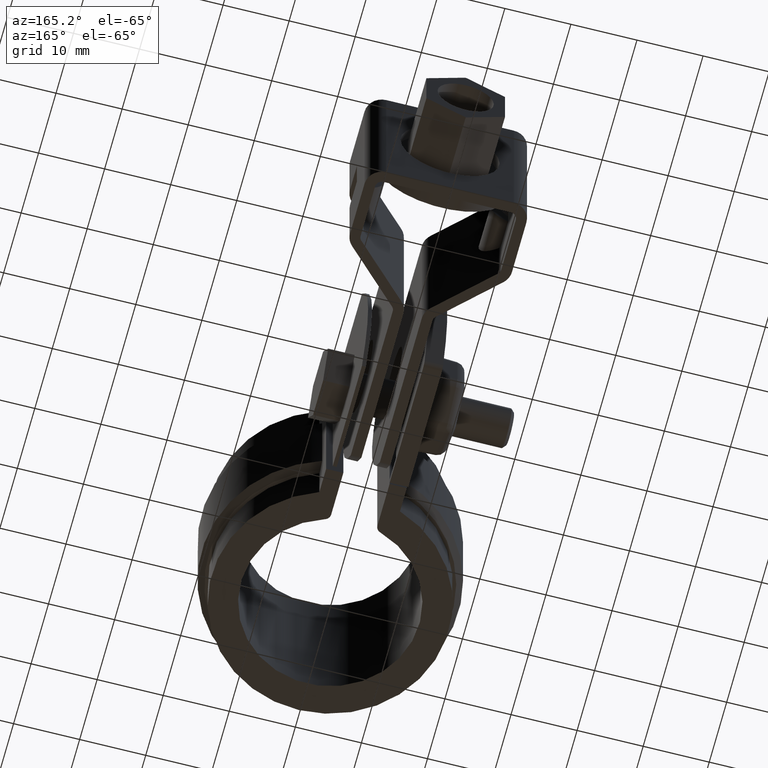
[diagram: clean part render]
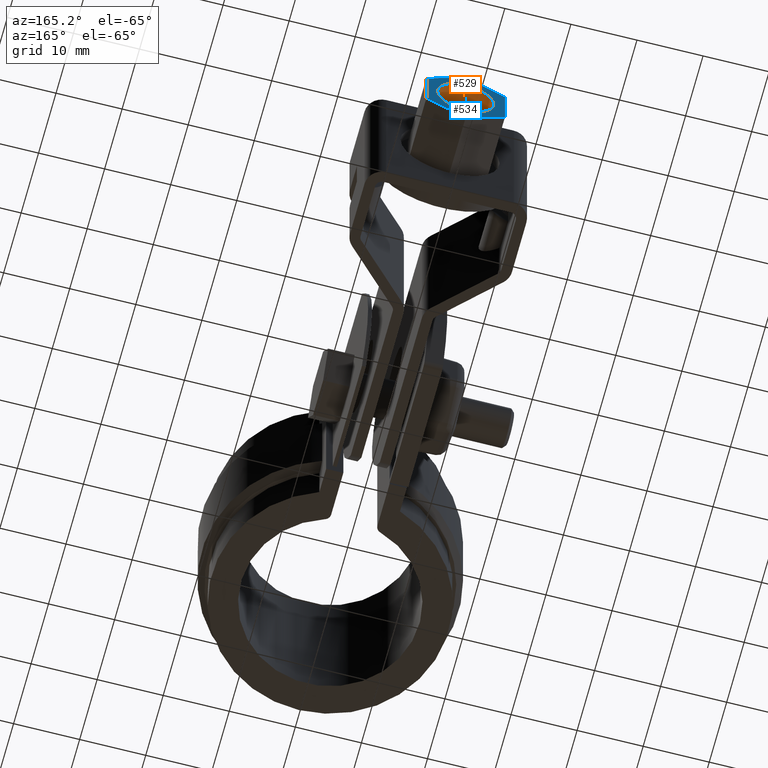
[diagram: same view with the hole feature highlighted: cylindrical wall and planar end face, labeled with their STEP entity ids]
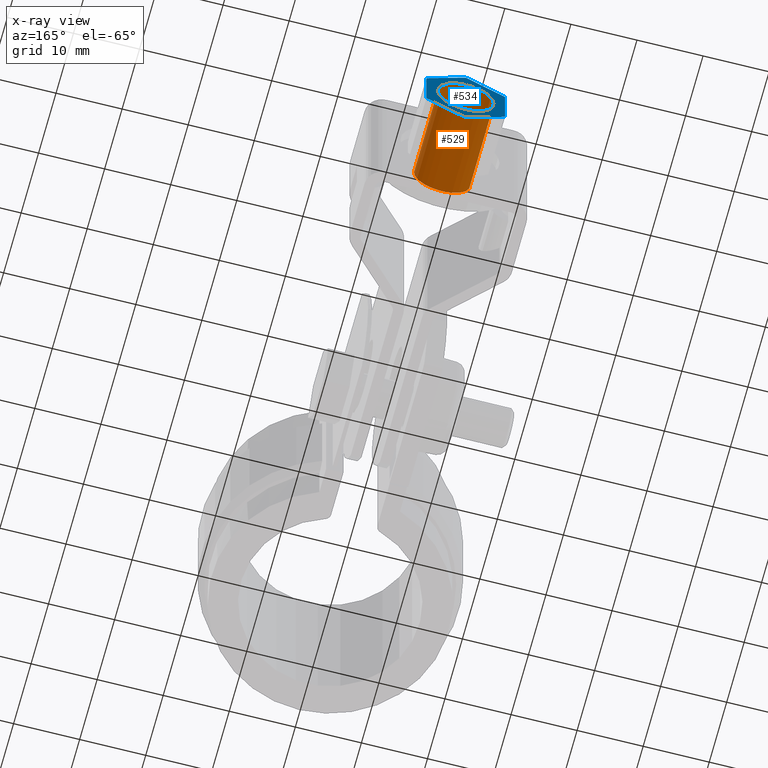
[diagram: x-ray of the same camera — body ghosted, the hole faces saturated]
A machine part, auxiliary view. The highlighted faces form one hole feature of diameter 8.5 mm: the cylindrical wall (entity #529, orange) and its adjacent planar end face (entity #534, blue) — they share a circular edge in the B-rep.
The next image is the same camera in x-ray (body ghosted, the hole faces saturated) — the bore reads through the body.
Wall:
#529 = ADVANCED_FACE( '', ( #1040, #1041 ), #1042, .F. );
#1040 = FACE_OUTER_BOUND( '', #2121, .T. );
#1041 = FACE_OUTER_BOUND( '', #2122, .T. );
#1042 = CYLINDRICAL_SURFACE( '', #2123, 4.25000000000000 );
#2121 = EDGE_LOOP( '', ( #4666 ) );
#2122 = EDGE_LOOP( '', ( #4667 ) );
#2123 = AXIS2_PLACEMENT_3D( '', #4668, #4669, #4670 );
#4666 = ORIENTED_EDGE( '', *, *, #6462, .F. );
#4667 = ORIENTED_EDGE( '', *, *, #6460, .F. );
#4668 = CARTESIAN_POINT( '', ( 1.08331310953628E-007, 59.7492907745435, -12.4999999827188 ) );
#4669 = DIRECTION( '', ( -7.94778667583653E-010, -1.00000000000000, -1.31468003180933E-010 ) );
#4670 = DIRECTION( '', ( 1.00000000000000, -7.94778667588677E-010, 3.82136079749811E-011 ) );
#6460 = EDGE_CURVE( '', #7698, #7698, #7699, .T. );
#6462 = EDGE_CURVE( '', #7702, #7702, #7703, .T. );
#7698 = VERTEX_POINT( '', #10871 );
#7699 = CIRCLE( '', #10872, 4.25000000000000 );
#7702 = VERTEX_POINT( '', #10875 );
#7703 = CIRCLE( '', #10876, 4.25000000000000 );
#10871 = CARTESIAN_POINT( '', ( 4.25000011170912, 63.9992907711978, -12.4999999819976 ) );
#10872 = AXIS2_PLACEMENT_3D( '', #12591, #12592, #12593 );
#10875 = CARTESIAN_POINT( '', ( 4.25000012251811, 77.5992907711978, -12.4999999802097 ) );
#10876 = AXIS2_PLACEMENT_3D( '', #12597, #12598, #12599 );
#12591 = CARTESIAN_POINT( '', ( 1.11709120290884E-007, 63.9992907745756, -12.4999999821600 ) );
#12592 = DIRECTION( '', ( 7.94778667583653E-010, 1.00000000000000, 1.31468003180933E-010 ) );
#12593 = DIRECTION( '', ( 1.00000000000000, -7.94778667588677E-010, 3.82132749080738E-011 ) );
#12597 = CARTESIAN_POINT( '', ( 1.22518110170022E-007, 77.5992907745756, -12.4999999803721 ) );
#12598 = DIRECTION( '', ( -7.94778667583653E-010, -1.00000000000000, -1.31468003180933E-010 ) );
#12599 = DIRECTION( '', ( 1.00000000000000, -7.94778667588677E-010, 3.82136079749811E-011 ) );
End face:
#534 = ADVANCED_FACE( '', ( #1052, #1053 ), #1054, .T. );
#1052 = FACE_BOUND( '', #2133, .T. );
#1053 = FACE_OUTER_BOUND( '', #2134, .T. );
#1054 = PLANE( '', #2135 );
#2133 = EDGE_LOOP( '', ( #4697 ) );
#2134 = EDGE_LOOP( '', ( #4698, #4699, #4700, #4701, #4702, #4703 ) );
#2135 = AXIS2_PLACEMENT_3D( '', #4704, #4705, #4706 );
#4697 = ORIENTED_EDGE( '', *, *, #6462, .T. );
#4698 = ORIENTED_EDGE( '', *, *, #6448, .T. );
#4699 = ORIENTED_EDGE( '', *, *, #6457, .T. );
#4700 = ORIENTED_EDGE( '', *, *, #6459, .T. );
#4701 = ORIENTED_EDGE( '', *, *, #6464, .T. );
#4702 = ORIENTED_EDGE( '', *, *, #6466, .T. );
#4703 = ORIENTED_EDGE( '', *, *, #6467, .T. );
#4704 = CARTESIAN_POINT( '', ( 5.95000012264939, 77.5992907702983, -15.9352340818230 ) );
#4705 = DIRECTION( '', ( 7.94778667583653E-010, 1.00000000000000, 1.31468003180933E-010 ) );
#4706 = DIRECTION( '', ( 0.500000000033094, -2.83534703281139E-010, -0.866025403765332 ) );
#6448 = EDGE_CURVE( '', #7678, #7676, #7679, .T. );
#6457 = EDGE_CURVE( '', #7676, #7692, #7694, .T. );
#6459 = EDGE_CURVE( '', #7692, #7695, #7697, .T. );
#6462 = EDGE_CURVE( '', #7702, #7702, #7703, .T. );
#6464 = EDGE_CURVE( '', #7695, #7704, #7706, .T. );
#6466 = EDGE_CURVE( '', #7704, #7707, #7709, .T. );
#6467 = EDGE_CURVE( '', #7707, #7678, #7710, .T. );
#7676 = VERTEX_POINT( '', #10837 );
#7678 = VERTEX_POINT( '', #10840 );
#7679 = LINE( '', #10841, #10842 );
#7692 = VERTEX_POINT( '', #10861 );
#7694 = LINE( '', #10864, #10865 );
#7695 = VERTEX_POINT( '', #10866 );
#7697 = LINE( '', #10869, #10870 );
#7702 = VERTEX_POINT( '', #10875 );
#7703 = CIRCLE( '', #10876, 4.25000000000000 );
#7704 = VERTEX_POINT( '', #10877 );
#7706 = LINE( '', #10880, #10881 );
#7707 = VERTEX_POINT( '', #10882 );
#7709 = LINE( '', #10885, #10886 );
#7710 = LINE( '', #10887, #10888 );
#10837 = CARTESIAN_POINT( '', ( 5.95000012264939, 77.5992907702983, -15.9352340818230 ) );
#10840 = CARTESIAN_POINT( '', ( 5.95000012238684, 77.5992907693951, -9.06476587846640 ) );
#10841 = CARTESIAN_POINT( '', ( 5.95000012238684, 77.5992907693951, -9.06476587846640 ) );
#10842 = VECTOR( '', #12577, 1000.00000000000 );
#10861 = CARTESIAN_POINT( '', ( 1.22780656296708E-007, 77.5992907754788, -19.3704681837286 ) );
#10864 = CARTESIAN_POINT( '', ( 5.95000012264939, 77.5992907702983, -15.9352340818230 ) );
#10865 = VECTOR( '', #12588, 1000.00000000000 );
#10866 = CARTESIAN_POINT( '', ( -5.94999987735061, 77.5992907797562, -15.9352340822777 ) );
#10869 = CARTESIAN_POINT( '', ( 1.22780658031432E-007, 77.5992907754788, -19.3704681837286 ) );
#10870 = VECTOR( '', #12590, 1000.00000000000 );
#10875 = CARTESIAN_POINT( '', ( 4.25000012251811, 77.5992907711978, -12.4999999802097 ) );
#10876 = AXIS2_PLACEMENT_3D( '', #12597, #12598, #12599 );
#10877 = CARTESIAN_POINT( '', ( -5.94999987761316, 77.5992907788529, -9.06476587892116 ) );
#10880 = CARTESIAN_POINT( '', ( -5.94999987735062, 77.5992907797562, -15.9352340822777 ) );
#10881 = VECTOR( '', #12601, 1000.00000000000 );
#10882 = CARTESIAN_POINT( '', ( 1.22255563175974E-007, 77.5992907736724, -5.62953177701550 ) );
#10885 = CARTESIAN_POINT( '', ( -5.94999987761316, 77.5992907788529, -9.06476587892115 ) );
#10886 = VECTOR( '', #12603, 1000.00000000000 );
#10887 = CARTESIAN_POINT( '', ( 1.22255569247507E-007, 77.5992907736724, -5.62953177701550 ) );
#10888 = VECTOR( '', #12604, 1000.00000000000 );
#12577 = DIRECTION( '', ( 3.82136635906203E-011, 1.31468003150562E-010, -1.00000000000000 ) );
#12588 = DIRECTION( '', ( -0.866025403765332, 7.54032518093023E-010, -0.500000000033094 ) );
#12590 = DIRECTION( '', ( -0.866025403803545, 6.22564514942461E-010, 0.499999999966906 ) );
#12597 = CARTESIAN_POINT( '', ( 1.22518110170022E-007, 77.5992907745756, -12.4999999803721 ) );
#12598 = DIRECTION( '', ( -7.94778667583653E-010, -1.00000000000000, -1.31468003180933E-010 ) );
#12599 = DIRECTION( '', ( 1.00000000000000, -7.94778667588677E-010, 3.82136079749811E-011 ) );
#12601 = DIRECTION( '', ( -3.82132195014105E-011, -1.31468003150562E-010, 1.00000000000000 ) );
#12603 = DIRECTION( '', ( 0.866025403765332, -7.54032518093023E-010, 0.500000000033094 ) );
#12604 = DIRECTION( '', ( 0.866025403803545, -6.22564514942461E-010, -0.499999999966906 ) );